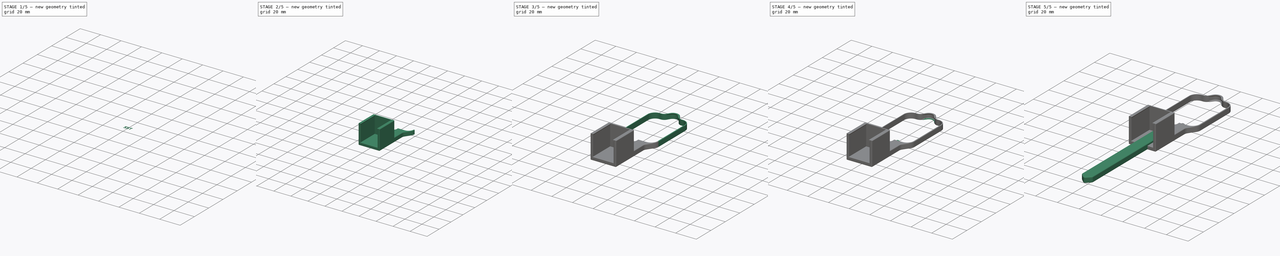
[diagram: build sequence overview — one tinted view per stage of 5, left to right]
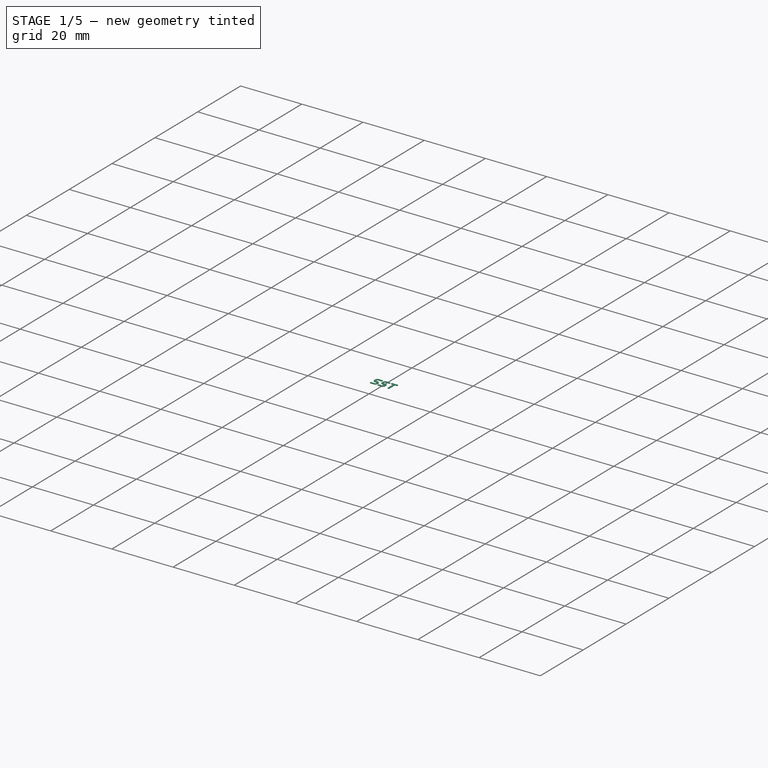
[diagram: stage 1 of 5 — iso view after this stage's code; geometry added in this stage tinted green]
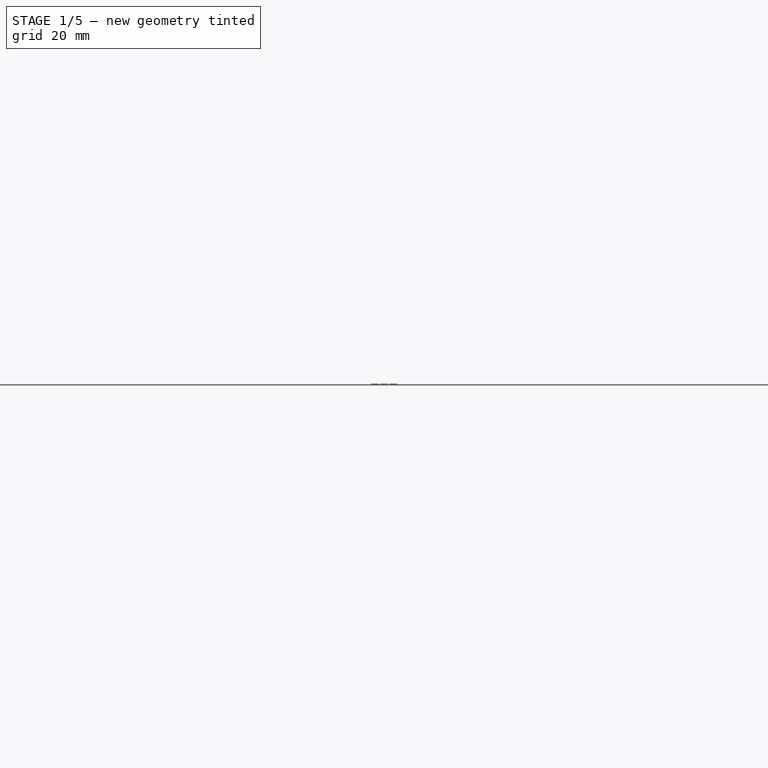
[diagram: stage 1 of 5 — front view after this stage's code; geometry added in this stage tinted green]
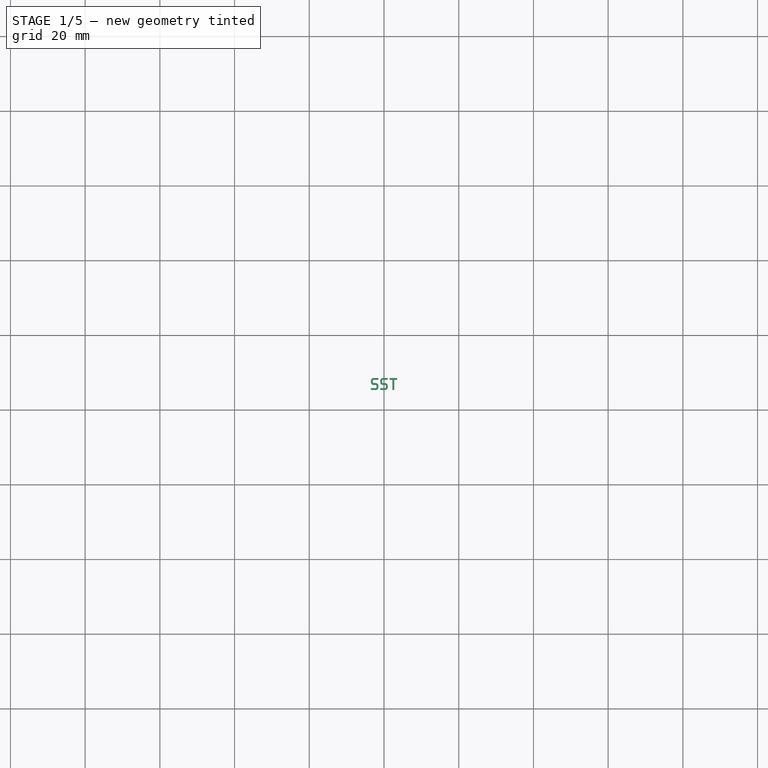
[diagram: stage 1 of 5 — top view after this stage's code; geometry added in this stage tinted green]
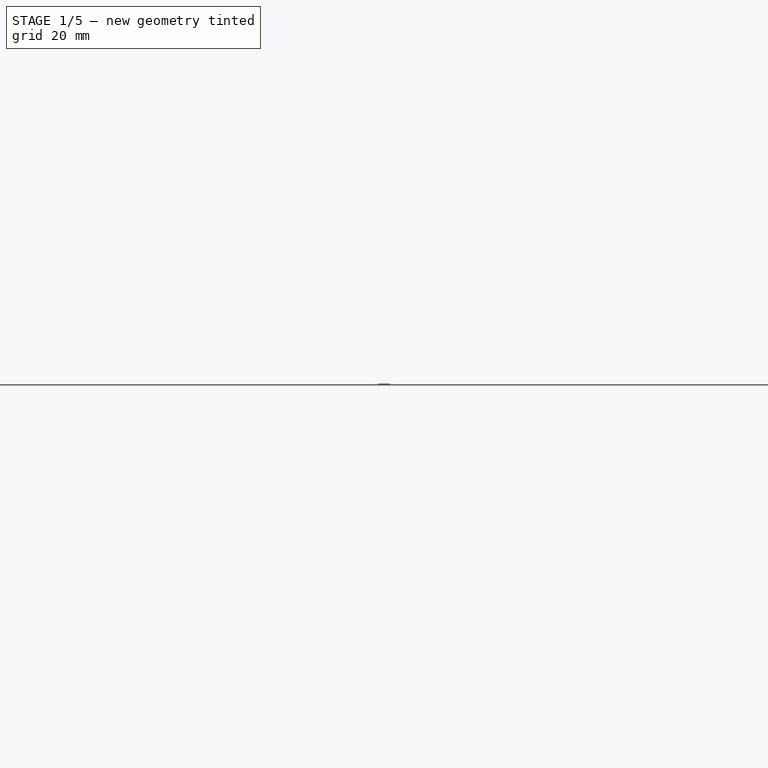
[diagram: stage 1 of 5 — right view after this stage's code; geometry added in this stage tinted green]
FCSTD DOCUMENT  (FreeCAD 0.17R13528 (Git))
Label: PlantSticker
License: All rights reserved
LicenseURL: http://en.wikipedia.org/wiki/All_rights_reserved
objects: Part::Extrusion×11, Sketcher::SketchObject×9, Part::MultiFuse×5, Part::Fillet×4, Part::Chamfer×3, Part::Cut×2, Part::FeaturePython×2
note: 36 computed .brp shape members not serialized (recipe doc carries the construction recipe); baked Part::Feature solids carry a one-line shape summary decoded from their .brp

FEATURE [Sketcher::SketchObject] Sketch004  label="SketchStringS"
  sketch-geometry (20):
    g0: ArcOfCircle CenterX=-0.3 CenterY=0.9 CenterZ=0 NormalX=0 NormalY=0 NormalZ=1 AngleXU=0 Radius=0.2 StartAngle=1.5708 EndAngle=3.14159
    g1: ArcOfCircle CenterX=-0.3 CenterY=0.45 CenterZ=0 NormalX=0 NormalY=0 NormalZ=1 AngleXU=0 Radius=0.2 StartAngle=3.14159 EndAngle=4.71239
    g2: ArcOfCircle CenterX=-0.3 CenterY=0.45 CenterZ=0 NormalX=0 NormalY=0 NormalZ=1 AngleXU=0 Radius=0.7 StartAngle=3.14159 EndAngle=4.71239
    g3: ArcOfCircle CenterX=-0.3 CenterY=0.9 CenterZ=0 NormalX=0 NormalY=0 NormalZ=1 AngleXU=0 Radius=0.7 StartAngle=1.5708 EndAngle=3.14159
    g4: ArcOfCircle CenterX=0.3 CenterY=-0.45 CenterZ=0 NormalX=0 NormalY=0 NormalZ=1 AngleXU=0 Radius=0.7 StartAngle=0 EndAngle=1.5708
    g5: ArcOfCircle CenterX=0.3 CenterY=-0.45 CenterZ=0 NormalX=0 NormalY=0 NormalZ=1 AngleXU=0 Radius=0.2 StartAngle=0 EndAngle=1.5708
    g6: ArcOfCircle CenterX=0.3 CenterY=-0.9 CenterZ=0 NormalX=0 NormalY=0 NormalZ=1 AngleXU=0 Radius=0.7 StartAngle=4.71239 EndAngle=6.28319
    g7: ArcOfCircle CenterX=0.3 CenterY=-0.9 CenterZ=0 NormalX=0 NormalY=0 NormalZ=1 AngleXU=0 Radius=0.2 StartAngle=4.71239 EndAngle=6.28319
    g8: LineSegment StartX=-0.3 StartY=0.25 StartZ=0 EndX=0.3 EndY=0.25 EndZ=0
    g9: LineSegment StartX=-0.3 StartY=1.1 StartZ=0 EndX=1 EndY=1.1 EndZ=0
    g10: LineSegment StartX=1 StartY=1.1 StartZ=0 EndX=1 EndY=1.6 EndZ=0
    g11: LineSegment StartX=1 StartY=1.6 StartZ=0 EndX=-0.3 EndY=1.6 EndZ=0
    g12: LineSegment StartX=-1 StartY=0.9 StartZ=0 EndX=-1 EndY=0.45 EndZ=0
    g13: LineSegment StartX=-0.5 StartY=0.9 StartZ=0 EndX=-0.5 EndY=0.45 EndZ=0
    g14: LineSegment StartX=-0.3 StartY=-0.25 StartZ=0 EndX=0.3 EndY=-0.25 EndZ=0
    g15: LineSegment StartX=0.5 StartY=-0.45 StartZ=0 EndX=0.5 EndY=-0.9 EndZ=0
    g16: LineSegment StartX=1 StartY=-0.45 StartZ=0 EndX=1 EndY=-0.9 EndZ=0
    g17: LineSegment StartX=0.3 StartY=-1.6 StartZ=0 EndX=-1 EndY=-1.6 EndZ=0
    g18: LineSegment StartX=-1 StartY=-1.6 StartZ=0 EndX=-1 EndY=-1.1 EndZ=0
    g19: LineSegment StartX=-1 StartY=-1.1 StartZ=0 EndX=0.3 EndY=-1.1 EndZ=0
  constraints (62):
    c: Coincident(g8,g1)
    c: Coincident(g8,g4)
    c: Horizontal(g8)
    c: Coincident(g9,g0)
    c: Horizontal(g9)
    c: Coincident(g10,g9)
    c: Coincident(g11,g10)
    c: Coincident(g11,g3)
    c: Horizontal(g11)
    c: Vertical(g10)
    c: DistanceY(g10,g10) = 0.5
    c: Coincident(g12,g3)
    c: Coincident(g12,g2)
    c: Vertical(g12)
    c: Coincident(g13,g0)
    c: Coincident(g13,g1)
    c: Coincident(g14,g2)
    c: Coincident(g14,g5)
    c: Horizontal(g14)
    c: Coincident(g15,g5)
    c: Coincident(g15,g7)
    c: Coincident(g16,g4)
    c: Coincident(g16,g6)
    c: Coincident(g17,g6)
    c: Coincident(g18,g17)
    c: Vertical(g18)
    c: Coincident(g19,g18)
    c: Coincident(g19,g7)
    c: Horizontal(g19)
    c: Horizontal(g0,g0)
    c: Vertical(g0,g0)
    c: Vertical(g13)
    c: Horizontal(g3,g3)
    c: Horizontal(g4,g4)
    c: Vertical(g4,g4)
    c: Vertical(g6,g6)
    c: Horizontal(g6,g6)
    c: Vertical(g16)
    c: Horizontal(g17)
    c: Horizontal(g1,g1)
    c: Vertical(g1,g1)
    c: Vertical(g1,g0)
    c: DistanceY(g6,g10) = 3.2
    c: Vertical(g9,g4)
    c: Vertical(g18,g2)
    c: Vertical(g3,g3)
    c: Coincident(g3,g0)
    c: Horizontal(g2,g2)
    c: Vertical(g2,g2)
    c: Coincident(g2,g1)
    c: Vertical(g5,g5)
    c: Vertical(g7,g7)
    c: Vertical(g7,g5)
    c: Vertical(g15)
    c: Horizontal(g5,g5)
    c: Horizontal(g7,g7)
    c: Coincident(g5,g4)
    c: Coincident(g6,g7)
    c: Radius(g5) = 0.2
    c: Symmetric(g2,g4,g-1)
    c: Symmetric(g17,g10,g-1)
    c: DistanceX(g17,g6) = 2
FEATURE [Sketcher::SketchObject] Sketch005  label="SketchStringT"
  sketch-geometry (9):
    g0: LineSegment StartX=-1 StartY=1.6 StartZ=0 EndX=1 EndY=1.6 EndZ=0
    g1: LineSegment StartX=1 StartY=1.6 StartZ=0 EndX=1 EndY=1.1 EndZ=0
    g2: LineSegment StartX=1 StartY=1.1 StartZ=0 EndX=0.25 EndY=1.1 EndZ=0
    g3: LineSegment StartX=0.25 StartY=1.1 StartZ=0 EndX=0.25 EndY=-1.6 EndZ=0
    g4: LineSegment StartX=0.25 StartY=-1.6 StartZ=0 EndX=-0.25 EndY=-1.6 EndZ=0
    g5: LineSegment StartX=-0.25 StartY=-1.6 StartZ=0 EndX=-0.25 EndY=1.1 EndZ=0
    g6: LineSegment StartX=-0.25 StartY=1.1 StartZ=0 EndX=-1 EndY=1.1 EndZ=0
    g7: LineSegment StartX=-1 StartY=1.1 StartZ=0 EndX=-1 EndY=1.6 EndZ=0
    g8: GeomPoint X=1 Y=-1.6 Z=0
  constraints (23):
    c: Coincident(g1,g0)
    c: Vertical(g1)
    c: Coincident(g2,g1)
    c: Horizontal(g2)
    c: Coincident(g3,g2)
    c: Vertical(g3)
    c: Coincident(g4,g3)
    c: Coincident(g5,g4)
    c: Vertical(g5)
    c: Coincident(g6,g5)
    c: Horizontal(g6)
    c: Coincident(g7,g6)
    c: Coincident(g7,g0)
    c: Vertical(g7)
    c: Symmetric(g5,g2,g-2)
    c: Horizontal(g4)
    c: DistanceX(g4,g4) = 0.5
    c: DistanceY(g1,g1) = 0.5
    c: Symmetric(g8,g0,g-1)
    c: DistanceY(g3,g0) = 3.2
    c: DistanceX(g0,g0) = 2
    c: Horizontal(g8,g3)
    c: Symmetric(g0,g0,g-2)
FEATURE [Part::Extrusion] Extrude006  label="ExtrudeStringAS"
  Base = -> Sketch004
  Dir = (0,0,1)
  DirMode = 2
  FaceMakerClass = Part::FaceMakerBullseye
  LengthFwd = 0
  LengthRev = 0.2
  Placement = pos=(-2.5,0,0) rot=(0,0,1;0rad)
  Solid = true
  Symmetric = false
FEATURE [Part::Extrusion] Extrude007  label="ExtrudeStringBS"
  Base = -> Sketch004
  Dir = (0,0,1)
  DirMode = 2
  FaceMakerClass = Part::FaceMakerBullseye
  LengthFwd = 0
  LengthRev = 0.2
  Solid = true
  Symmetric = false
FEATURE [Part::Extrusion] Extrude008  label="ExtrudeStringT"
  Base = -> Sketch005
  Dir = (0,0,1)
  DirMode = 2
  FaceMakerClass = Part::FaceMakerBullseye
  LengthFwd = 0
  LengthRev = 0.2
  Placement = pos=(2.5,0,0) rot=(0,0,1;0rad)
  Solid = true
  Symmetric = false
FEATURE [Part::MultiFuse] Fusion001  label="FusionString2"
  Placement = pos=(0,-33,5) rot=(0,0,1;0rad)
  Shapes = -> [Extrude006,Extrude007,Extrude008]
FEATURE [Part::FeaturePython] Clone001  label="FusionHalter20String2"  # Draft clone (typed FeaturePython)
  AttacherType = Attacher::AttachEngine3D
  Fuse = false
  Objects = -> [Fusion001]
  Placement = pos=(0,-33,5) rot=(0,0,1;0rad)
  Scale = (1,1,1)
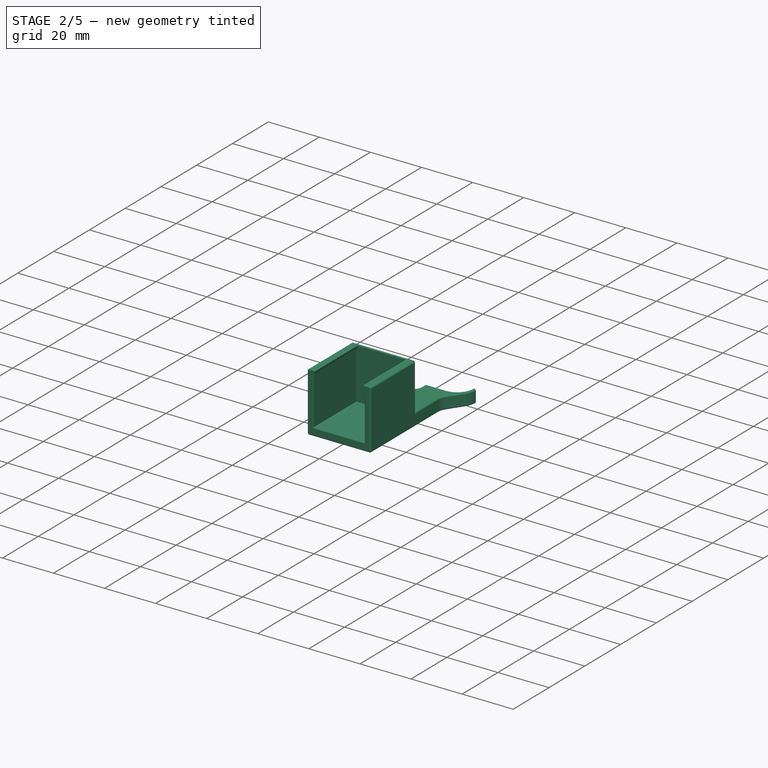
[diagram: stage 2 of 5 — iso view after this stage's code; geometry added in this stage tinted green]
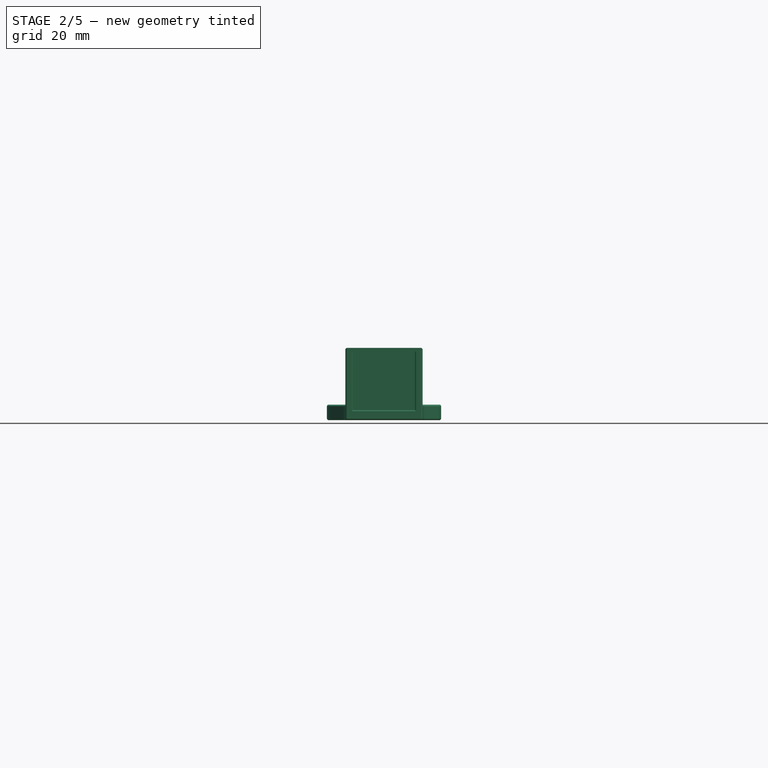
[diagram: stage 2 of 5 — front view after this stage's code; geometry added in this stage tinted green]
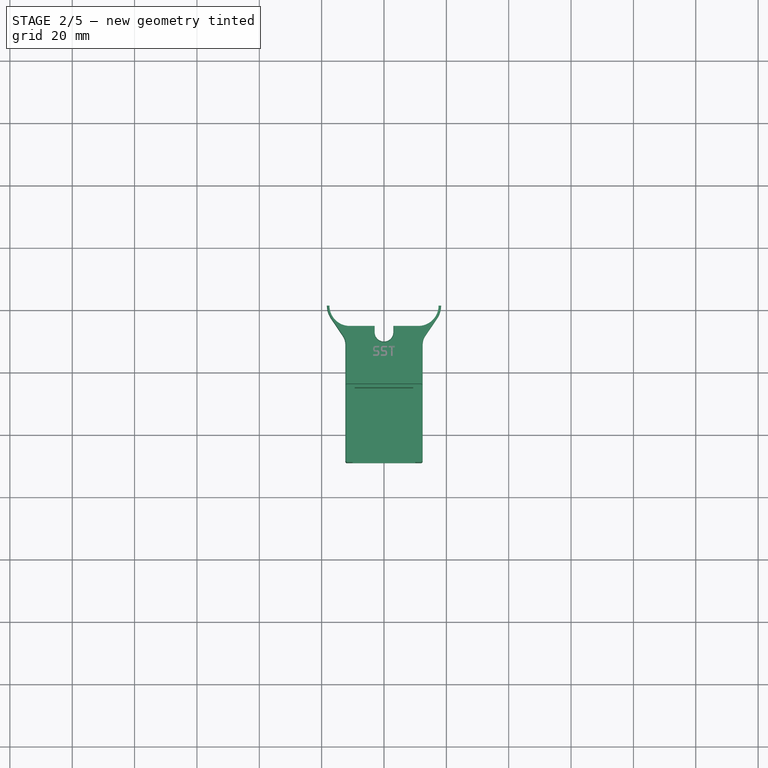
[diagram: stage 2 of 5 — top view after this stage's code; geometry added in this stage tinted green]
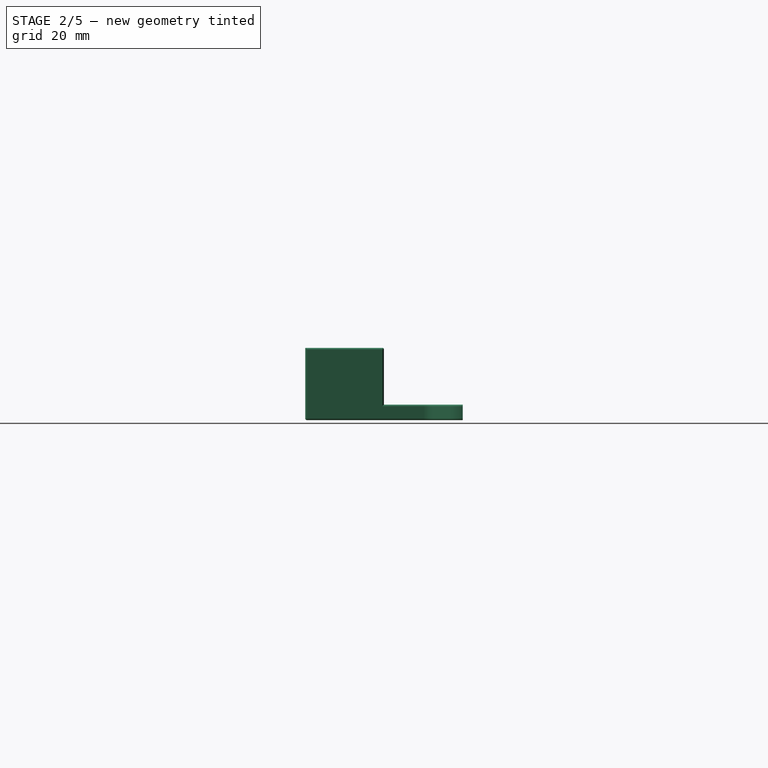
[diagram: stage 2 of 5 — right view after this stage's code; geometry added in this stage tinted green]
FEATURE [Sketcher::SketchObject] Sketch006  label="SketchHalter20A2"
  sketch-geometry (19):
    g0: ArcOfCircle CenterX=11 CenterY=-18.5 CenterZ=0 NormalX=0 NormalY=0 NormalZ=1 AngleXU=0 Radius=6.5 StartAngle=4.71239 EndAngle=6.28319
    g1: ArcOfCircle CenterX=-11 CenterY=-18.5 CenterZ=0 NormalX=0 NormalY=0 NormalZ=1 AngleXU=0 Radius=6.5 StartAngle=3.14159 EndAngle=4.71239
    g2: ArcOfCircle CenterX=-11 CenterY=-18.5 CenterZ=0 NormalX=0 NormalY=0 NormalZ=1 AngleXU=0 Radius=7.31 StartAngle=3.14159 EndAngle=3.73711
    g3: ArcOfCircle CenterX=11 CenterY=-18.5 CenterZ=0 NormalX=0 NormalY=0 NormalZ=1 AngleXU=0 Radius=7.31 StartAngle=5.68767 EndAngle=6.28319
    g4: GeomPoint X=11 Y=25 Z=0
    g5: LineSegment StartX=17.5 StartY=-18.5 StartZ=0 EndX=18.31 EndY=-18.5 EndZ=0
    g6: LineSegment StartX=-18.31 StartY=-18.5 StartZ=0 EndX=-17.5 EndY=-18.5 EndZ=0
    g7: LineSegment StartX=-17.0516 StartY=-22.6004 StartZ=0 EndX=-13.2607 EndY=-28.1953 EndZ=0
    g8: LineSegment StartX=17.0516 StartY=-22.6004 StartZ=0 EndX=13.2607 EndY=-28.1953 EndZ=0
    g9: LineSegment StartX=-12.4 StartY=-31 StartZ=0 EndX=-12.4 EndY=-45 EndZ=0
    g10: ArcOfCircle CenterX=-17.4 CenterY=-31 CenterZ=0 NormalX=0 NormalY=0 NormalZ=1 AngleXU=0 Radius=5 StartAngle=0 EndAngle=0.595516
    g11: ArcOfCircle CenterX=17.4 CenterY=-31 CenterZ=0 NormalX=0 NormalY=0 NormalZ=1 AngleXU=0 Radius=5 StartAngle=2.54608 EndAngle=3.14159
    g12: LineSegment StartX=-11 StartY=-25 StartZ=0 EndX=-3 EndY=-25 EndZ=0
    g13: LineSegment StartX=11 StartY=-25 StartZ=0 EndX=3 EndY=-25 EndZ=0
    g14: LineSegment StartX=3 StartY=-25 StartZ=0 EndX=3 EndY=-27 EndZ=0
    g15: LineSegment StartX=-3 StartY=-25 StartZ=0 EndX=-3 EndY=-27 EndZ=0
    g16: ArcOfCircle CenterX=0 CenterY=-27 CenterZ=0 NormalX=0 NormalY=0 NormalZ=1 AngleXU=0 Radius=3 StartAngle=3.14159 EndAngle=6.28319
    g17: LineSegment StartX=12.4 StartY=-31 StartZ=0 EndX=12.4 EndY=-45 EndZ=0
    g18: LineSegment StartX=-12.4 StartY=-45 StartZ=0 EndX=12.4 EndY=-45 EndZ=0
  constraints (55):
    c: Symmetric(g1,g0,g-2)
    c: Vertical(g0,g0)
    c: Horizontal(g0,g0)
    c: Vertical(g1,g1)
    c: Horizontal(g1,g1)
    c: Radius(g0) = 6.5
    c: DistanceX(g1,g0) = 35
    c: Horizontal(g1,g0)
    c: Coincident(g2,g1)
    c: Coincident(g3,g0)
    c: Horizontal(g0,g3)
    c: DistanceX(g0,g3) = 0.81
    c: Horizontal(g2,g1)
    c: Symmetric(g4,g0,g-1)
    c: DistanceY(g0,g4) = 50
    c: Coincident(g5,g0)
    c: Coincident(g5,g3)
    c: Coincident(g6,g2)
    c: Coincident(g6,g1)
    c: Vertical(g9)
    c: Tangent(g8,g3) = 1.5708
    c: Tangent(g7,g2) = -1.5708
    c: Coincident(g10,g9)
    c: Horizontal(g9,g10)
    c: Horizontal(g11,g11)
    c: Tangent(g10,g7) = 1.5708
    c: Tangent(g11,g8) = -1.5708
    c: Symmetric(g9,g11,g-2)
    c: DistanceX(g9,g11) = 24.8
    c: Radius(g11) = 5
    c: Horizontal(g7,g8)
    c: Equal(g6,g5)
    c: Angle(g11,g8) = 2.26893
    c: Coincident(g12,g1)
    c: Horizontal(g12)
    c: Coincident(g13,g0)
    c: Horizontal(g13)
    c: Coincident(g14,g13)
    c: Vertical(g14)
    c: Coincident(g15,g12)
    c: Vertical(g15)
    c: Coincident(g16,g15)
    c: Coincident(g16,g14)
    c: Horizontal(g15,g14)
    c: Horizontal(g14,g16)
    c: PointOnObject(g16,g-2)
    c: Radius(g16) = 3
    c: DistanceY(g14,g14) = 2
    c: Coincident(g17,g11)
    c: Vertical(g17)
    c: DistanceY(g17,g-1) = 45
    c: DistanceY(g11,g0) = 6
    c: Coincident(g18,g9)
    c: Coincident(g18,g17)
    c: Horizontal(g18)
FEATURE [Part::Extrusion] Extrude009  label="ExtrudeHalter20A2"
  Base = -> Sketch006
  Dir = (0,0,1)
  DirMode = 2
  FaceMakerClass = Part::FaceMakerBullseye
  LengthFwd = 5
  LengthRev = 0
  Solid = true
  Symmetric = false
FEATURE [Sketcher::SketchObject] Sketch007  label="SketchHalter20B2"
  Placement = pos=(0,0,0) rot=(-1,0,0;4.71239rad)
  sketch-geometry (12):
    g0: LineSegment StartX=-12.4 StartY=23.2 StartZ=0 EndX=-12.4 EndY=0 EndZ=0
    g1: LineSegment StartX=-12.4 StartY=0 StartZ=0 EndX=12.4 EndY=0 EndZ=0
    g2: LineSegment StartX=12.4 StartY=0 StartZ=0 EndX=12.4 EndY=23.2 EndZ=0
    g3: LineSegment StartX=12.4 StartY=23.2 StartZ=0 EndX=9.4 EndY=23.2 EndZ=0
    g4: LineSegment StartX=9.4 StartY=23.2 StartZ=0 EndX=9.4 EndY=22.8 EndZ=0
    g5: LineSegment StartX=9.4 StartY=22.8 StartZ=0 EndX=10 EndY=22.0849 EndZ=0
    g6: LineSegment StartX=10 StartY=22.0849 StartZ=0 EndX=10 EndY=3.2 EndZ=0
    g7: LineSegment StartX=10 StartY=3.2 StartZ=0 EndX=-10 EndY=3.2 EndZ=0
    g8: LineSegment StartX=-10 StartY=3.2 StartZ=0 EndX=-10 EndY=22.0849 EndZ=0
    g9: LineSegment StartX=-10 StartY=22.0849 StartZ=0 EndX=-9.4 EndY=22.8 EndZ=0
    g10: LineSegment StartX=-9.4 StartY=22.8 StartZ=0 EndX=-9.4 EndY=23.2 EndZ=0
    g11: LineSegment StartX=-9.4 StartY=23.2 StartZ=0 EndX=-12.4 EndY=23.2 EndZ=0
  constraints (33):
    c: Vertical(g0)
    c: Coincident(g1,g0)
    c: Coincident(g2,g1)
    c: Vertical(g2)
    c: Coincident(g3,g2)
    c: Horizontal(g3)
    c: Coincident(g4,g3)
    c: Coincident(g5,g4)
    c: Coincident(g6,g5)
    c: Vertical(g6)
    c: Coincident(g7,g6)
    c: Horizontal(g7)
    c: Coincident(g8,g7)
    c: Vertical(g8)
    c: Coincident(g9,g8)
    c: Coincident(g10,g9)
    c: Vertical(g10)
    c: Coincident(g11,g10)
    c: Coincident(g11,g0)
    c: Horizontal(g11)
    c: Symmetric(g10,g3,g-2)
    c: Vertical(g4)
    c: Horizontal(g9,g4)
    c: Symmetric(g8,g5,g-2)
    c: PointOnObject(g1,g-1)
    c: DistanceY(g1,g6) = 3.2
    c: DistanceY(g6,g2) = 20
    c: DistanceX(g7,g6) = 20
    c: Symmetric(g0,g1,g-2)
    c: DistanceX(g6,g1) = 2.4
    c: DistanceY(g4,g4) = 0.4
    c: DistanceX(g4,g5) = 0.6
    c: Angle(g5,g6) = 2.44346
FEATURE [Part::Extrusion] Extrude010  label="ExtrudeHalter20B2"
  Base = -> Sketch007
  Dir = (0,-1,0)
  DirMode = 2
  FaceMakerClass = Part::FaceMakerBullseye
  LengthFwd = 24
  LengthRev = 0
  Placement = pos=(0,-45,0) rot=(0,0,1;0rad)
  Solid = true
  Symmetric = false
FEATURE [Sketcher::SketchObject] Sketch008  label="SketchHalter20C2"
  Placement = pos=(0,0,0) rot=(1,0,0;1.5708rad)
  sketch-geometry (4):
    g0: LineSegment StartX=-12.4 StartY=23.2 StartZ=0 EndX=-12.4 EndY=0 EndZ=0
    g1: LineSegment StartX=-12.4 StartY=0 StartZ=0 EndX=12.4 EndY=0 EndZ=0
    g2: LineSegment StartX=12.4 StartY=0 StartZ=0 EndX=12.4 EndY=23.2 EndZ=0
    g3: LineSegment StartX=12.4 StartY=23.2 StartZ=0 EndX=-12.4 EndY=23.2 EndZ=0
  constraints (11):
    c: Vertical(g0)
    c: Coincident(g1,g0)
    c: Coincident(g2,g1)
    c: Vertical(g2)
    c: Coincident(g3,g2)
    c: Horizontal(g3)
    c: PointOnObject(g1,g-1)
    c: Symmetric(g0,g1,g-2)
    c: DistanceY(g1,g2) = 23.2
    c: DistanceX(g0,g2) = 24.8
    c: Coincident(g3,g0)
FEATURE [Part::Extrusion] Extrude011  label="ExtrudeHalter20C2"
  Base = -> Sketch008
  Dir = (0,-1,0)
  DirMode = 2
  FaceMakerClass = Part::FaceMakerBullseye
  LengthFwd = 0
  LengthRev = 1.2
  Placement = pos=(0,-45,0) rot=(0,0,1;0rad)
  Solid = true
  Symmetric = false
FEATURE [Part::MultiFuse] Fusion003  label="FusionHalter20"
  Refine = true
  Shapes = -> [Extrude009,Extrude010,Extrude011]
FEATURE [Part::Fillet] Fillet002  label="FilletHalter20A2"
  Base = -> Fusion003
  Edges = 23 edges r=0.6: [Edge11,Edge12,Edge13,Edge14,Edge16,Edge17,Edge18,Edge19,Edge29,Edge31,Edge33,Edge36,Edge38,Edge40,Edge50,Edge51,Edge53,Edge54,Edge55,Edge56,Edge57,Edge82,Edge83]
FEATURE [Part::Fillet] Fillet003  label="FilletHalter20B2"
  Base = -> Fillet002
  Edges = 10 edges r=0.39: [Edge18,Edge20,Edge22,Edge34,Edge36,Edge38,Edge82,Edge104,Edge106,Edge108]
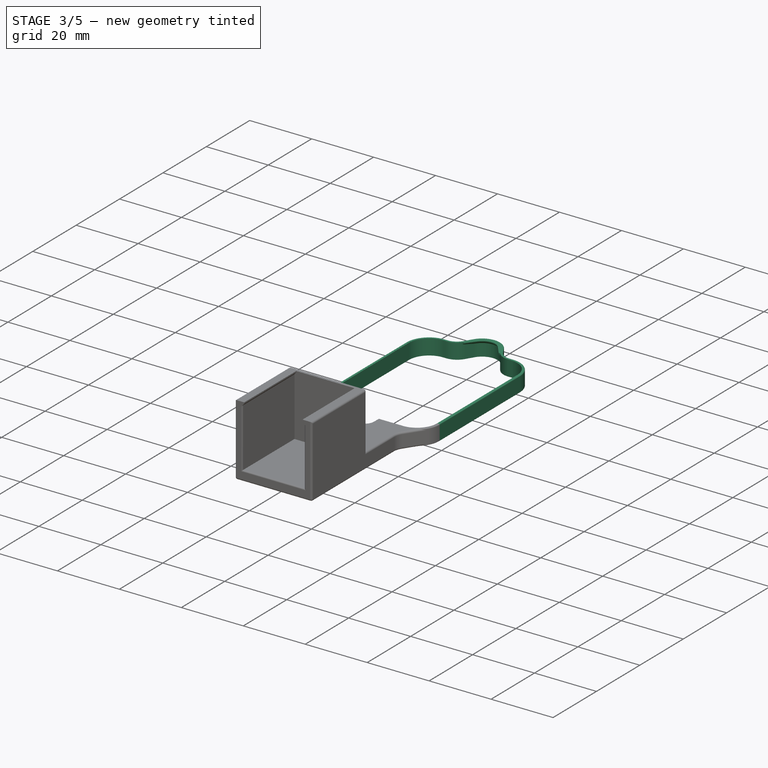
[diagram: stage 3 of 5 — iso view after this stage's code; geometry added in this stage tinted green]
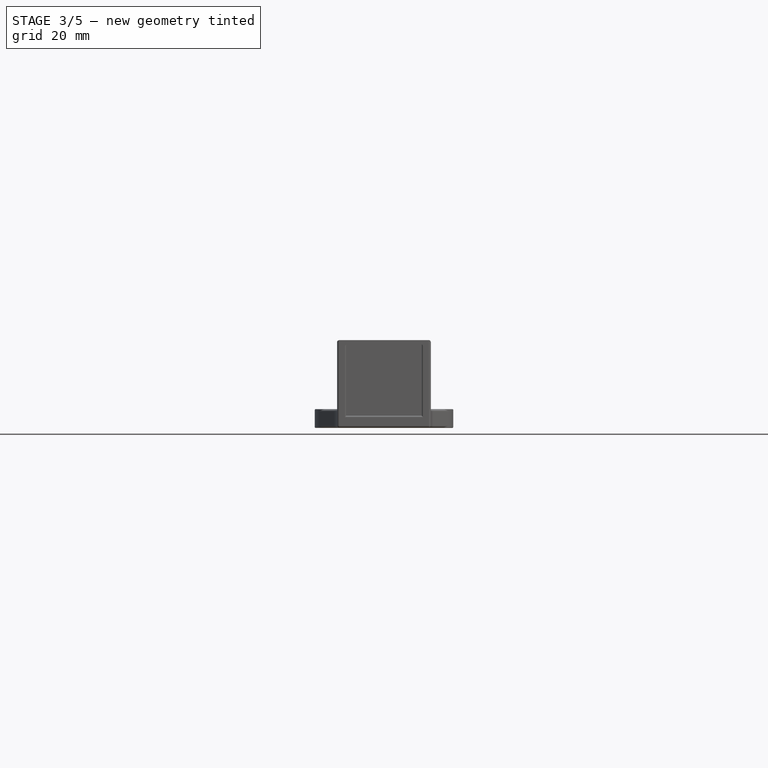
[diagram: stage 3 of 5 — front view after this stage's code; geometry added in this stage tinted green]
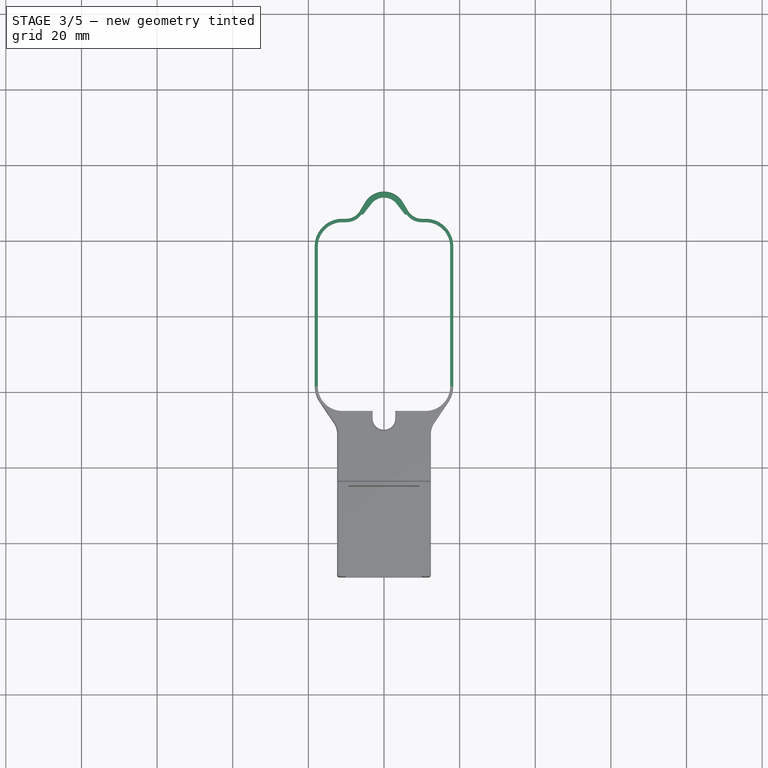
[diagram: stage 3 of 5 — top view after this stage's code; geometry added in this stage tinted green]
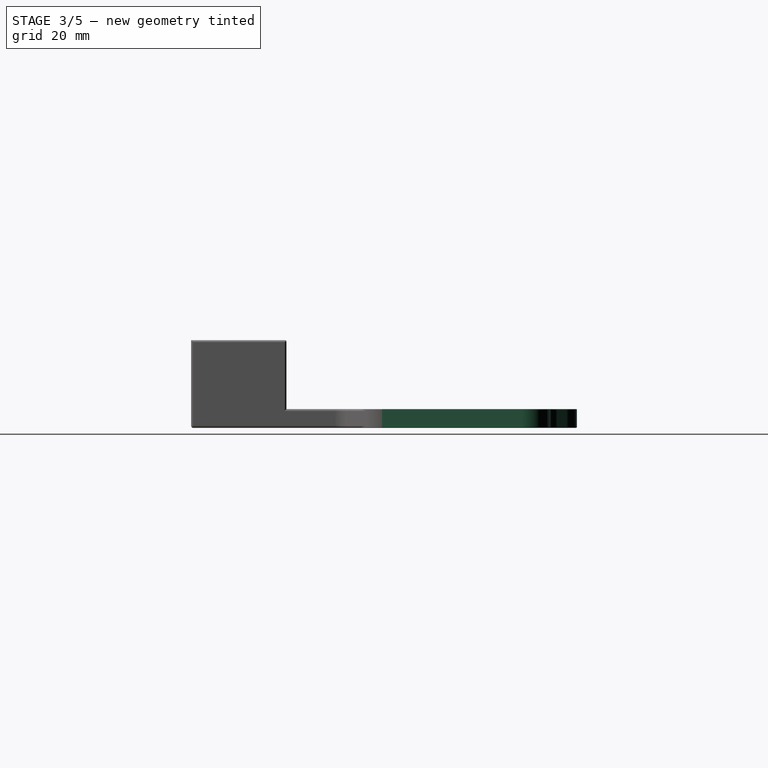
[diagram: stage 3 of 5 — right view after this stage's code; geometry added in this stage tinted green]
FEATURE [Sketcher::SketchObject] Sketch  label="SketchRand2"
  sketch-geometry (33):
    g0: LineSegment StartX=-17.5 StartY=18.5 StartZ=0 EndX=-17.5 EndY=-18.5 EndZ=0
    g1: LineSegment StartX=17.5 StartY=-18.5 StartZ=0 EndX=17.5 EndY=18.5 EndZ=0
    g2: ArcOfCircle CenterX=-11 CenterY=18.5 CenterZ=0 NormalX=0 NormalY=0 NormalZ=1 AngleXU=0 Radius=6.5 StartAngle=1.5708 EndAngle=3.14159
    g3: ArcOfCircle CenterX=11 CenterY=18.5 CenterZ=0 NormalX=0 NormalY=0 NormalZ=1 AngleXU=0 Radius=6.5 StartAngle=0 EndAngle=1.5708
    g4: ArcOfCircle CenterX=11 CenterY=-18.5 CenterZ=0 NormalX=0 NormalY=0 NormalZ=1 AngleXU=0 Radius=6.5 StartAngle=4.71239 EndAngle=6.28319
    g5: ArcOfCircle CenterX=-11 CenterY=-18.5 CenterZ=0 NormalX=0 NormalY=0 NormalZ=1 AngleXU=0 Radius=6.5 StartAngle=3.14159 EndAngle=4.71239
    g6: ArcOfCircle CenterX=-10 CenterY=30 CenterZ=0 NormalX=0 NormalY=0 NormalZ=1 AngleXU=0 Radius=5 StartAngle=4.71239 EndAngle=5.73717
    g7: ArcOfCircle CenterX=10 CenterY=30 CenterZ=0 NormalX=0 NormalY=0 NormalZ=1 AngleXU=0 Radius=5 StartAngle=3.68761 EndAngle=4.71239
    g8: LineSegment StartX=-11 StartY=25 StartZ=0 EndX=-10 EndY=25 EndZ=0
    g9: LineSegment StartX=10 StartY=25 StartZ=0 EndX=11 EndY=25 EndZ=0
    g10: LineSegment StartX=5.727 StartY=27.4036 StartZ=0 EndX=4.273 EndY=29.7964 EndZ=0
    g11: LineSegment StartX=-4.273 StartY=29.7964 StartZ=0 EndX=-5.727 EndY=27.4036 EndZ=0
    g12: ArcOfCircle CenterX=0 CenterY=27.2 CenterZ=0 NormalX=0 NormalY=0 NormalZ=1 AngleXU=0 Radius=5 StartAngle=1.5708 EndAngle=2.59558
    g13: ArcOfCircle CenterX=0 CenterY=27.2 CenterZ=0 NormalX=0 NormalY=0 NormalZ=1 AngleXU=0 Radius=5 StartAngle=0.546017 EndAngle=1.5708
    g14: ArcOfCircle CenterX=-11 CenterY=-18.5 CenterZ=0 NormalX=0 NormalY=0 NormalZ=1 AngleXU=0 Radius=7.31 StartAngle=3.14159 EndAngle=4.71239
    g15: ArcOfCircle CenterX=11 CenterY=-18.5 CenterZ=0 NormalX=0 NormalY=0 NormalZ=1 AngleXU=0 Radius=7.31 StartAngle=4.71239 EndAngle=6.28319
    g16: ArcOfCircle CenterX=11 CenterY=18.5 CenterZ=0 NormalX=0 NormalY=0 NormalZ=1 AngleXU=0 Radius=7.31 StartAngle=0 EndAngle=1.5708
    g17: ArcOfCircle CenterX=10 CenterY=30 CenterZ=0 NormalX=0 NormalY=0 NormalZ=1 AngleXU=0 Radius=4.19 StartAngle=3.68761 EndAngle=4.71239
    g18: ArcOfCircle CenterX=0 CenterY=27.2 CenterZ=0 NormalX=0 NormalY=0 NormalZ=1 AngleXU=0 Radius=5.81 StartAngle=0.546017 EndAngle=2.59558
    g19: ArcOfCircle CenterX=-10 CenterY=30 CenterZ=0 NormalX=0 NormalY=0 NormalZ=1 AngleXU=0 Radius=4.19 StartAngle=4.71239 EndAngle=5.73717
    g20: ArcOfCircle CenterX=-11 CenterY=18.5 CenterZ=0 NormalX=0 NormalY=0 NormalZ=1 AngleXU=0 Radius=7.31 StartAngle=1.5708 EndAngle=3.14159
    g21: LineSegment StartX=-6.41923 StartY=27.8242 StartZ=0 EndX=-4.96522 EndY=30.2171 EndZ=0
    g22: LineSegment StartX=4.96522 StartY=30.2171 StartZ=0 EndX=6.41923 EndY=27.8242 EndZ=0
    g23: LineSegment StartX=10 StartY=25.81 StartZ=0 EndX=11 EndY=25.81 EndZ=0
    g24: LineSegment StartX=-11 StartY=25.81 StartZ=0 EndX=-10 EndY=25.81 EndZ=0
    g25: LineSegment StartX=-18.31 StartY=18.5 StartZ=0 EndX=-18.31 EndY=-18.5 EndZ=0
    g26: LineSegment StartX=18.31 StartY=-18.5 StartZ=0 EndX=18.31 EndY=18.5 EndZ=0
    g27: LineSegment StartX=-11 StartY=-25 StartZ=0 EndX=-3.5 EndY=-25 EndZ=0
    g28: LineSegment StartX=-3.5 StartY=-25 StartZ=0 EndX=-3.5 EndY=-25.81 EndZ=0
    g29: LineSegment StartX=-3.5 StartY=-25.81 StartZ=0 EndX=-11 EndY=-25.81 EndZ=0
    g30: LineSegment StartX=11 StartY=-25 StartZ=0 EndX=3.5 EndY=-25 EndZ=0
    g31: LineSegment StartX=3.5 StartY=-25 StartZ=0 EndX=3.5 EndY=-25.81 EndZ=0
    g32: LineSegment StartX=3.5 StartY=-25.81 StartZ=0 EndX=11 EndY=-25.81 EndZ=0
  constraints (95):
    c: Vertical(g0)
    c: Symmetric(g1,g1,g-1)
    c: Symmetric(g5,g4,g-2)
    c: Coincident(g2,g0)
    c: Coincident(g3,g1)
    c: Coincident(g4,g1)
    c: Coincident(g5,g0)
    c: Horizontal(g0,g2)
    c: Horizontal(g3,g1)
    c: Horizontal(g2,g3)
    c: Vertical(g4,g4)
    c: Horizontal(g4,g1)
    c: Vertical(g5,g5)
    c: Horizontal(g5,g0)
    c: Radius(g4) = 6.5
    c: DistanceX(g0,g1) = 35
    c: Vertical(g2,g2)
    c: Vertical(g3,g3)
    c: Vertical(g4,g3)
    c: Horizontal(g5,g4)
    c: Vertical(g5,g2)
    c: DistanceY(g4,g3) = 50
    c: Coincident(g8,g2)
    c: Coincident(g8,g6)
    c: Coincident(g9,g7)
    c: Horizontal(g9)
    c: Horizontal(g3,g9)
    c: DistanceX(g9,g9) = 1
    c: Coincident(g9,g3)
    c: Vertical(g7,g7)
    c: Vertical(g6,g6)
    c: Symmetric(g6,g7,g-2)
    c: Tangent(g11,g6) = 1.5708
    c: Tangent(g10,g7) = 1.5708
    c: Radius(g7) = 5
    c: Horizontal(g6,g7)
    c: Coincident(g13,g12)
    c: Coincident(g13,g12)
    c: PointOnObject(g12,g-2)
    c: PointOnObject(g12,g-2)
    c: Tangent(g12,g11) = -1.5708
    c: Tangent(g13,g10) = -1.5708
    c: Radius(g13) = 5
    c: DistanceY(g4,g12) = 57.2
    c: Coincident(g14,g5)
    c: Coincident(g15,g4)
    c: Coincident(g16,g3)
    c: Coincident(g17,g7)
    c: Coincident(g18,g12)
    c: Coincident(g19,g6)
    c: Coincident(g20,g2)
    c: Coincident(g23,g17)
    c: Coincident(g23,g16)
    c: Horizontal(g23)
    c: Coincident(g24,g20)
    c: Coincident(g24,g19)
    c: Coincident(g25,g20)
    c: Coincident(g25,g14)
    c: Vertical(g25)
    c: Coincident(g26,g15)
    c: Coincident(g26,g16)
    c: Vertical(g26)
    c: Horizontal(g4,g15)
    c: DistanceX(g1,g15) = 0.81
    c: Vertical(g4,g15)
    c: Vertical(g14,g5)
    c: Horizontal(g14,g5)
    c: Horizontal(g20,g2)
    c: Horizontal(g3,g16)
    c: Vertical(g2,g20)
    c: Horizontal(g24)
    c: Vertical(g19,g6)
    c: Vertical(g17,g7)
    c: Vertical(g3,g16)
    c: Tangent(g22,g17) = -1.5708
    c: Tangent(g21,g19) = -1.5708
    c: Tangent(g21,g18) = 1.5708
    c: Tangent(g22,g18) = 1.5708
    c: Parallel(g10,g22)
    c: Coincident(g27,g5)
    c: Horizontal(g27)
    c: Coincident(g28,g27)
    c: Coincident(g29,g28)
    c: Coincident(g29,g14)
    c: Horizontal(g29)
    c: Coincident(g30,g4)
    c: Horizontal(g30)
    c: Coincident(g31,g30)
    c: Coincident(g32,g31)
    c: Coincident(g32,g15)
    c: Horizontal(g32)
    c: Symmetric(g28,g31,g-2)
    c: Vertical(g28)
    c: Vertical(g31)
    c: DistanceX(g27,g30) = 7
FEATURE [Part::Extrusion] Extrude  label="ExtrudeRand2"
  Base = -> Sketch
  Dir = (0,0,1)
  DirMode = 2
  FaceMakerClass = Part::FaceMakerBullseye
  LengthFwd = 5
  LengthRev = 0
  Solid = true
  Symmetric = false
FEATURE [Part::Extrusion] Extrude003  label="ExtrudeRandCB2"
  Base = -> Sketch002
  Dir = (0,0,1)
  DirMode = 2
  FaceMakerClass = Part::FaceMakerBullseye
  LengthFwd = 0
  LengthRev = 1
  Placement = pos=(0,0,5) rot=(0,0,1;0rad)
  Solid = true
  Symmetric = false
FEATURE [Part::Chamfer] Chamfer002  label="ChamferRandCB2"
  Base = -> Extrude003
  Edges = 3 edges r=0.75: [Edge18,Edge21,Edge24]
FEATURE [Part::Fillet] Fillet001  label="FilletRand2"
  Base = -> Extrude
  Edges = 30 edges r=0.24: [Edge18,Edge19,Edge21,Edge22,Edge24,Edge25,Edge27,Edge28,Edge30,Edge31,Edge33,Edge34,Edge36,Edge37,Edge39,Edge40,Edge42,Edge43,Edge45,Edge46,Edge48,Edge49,Edge51,Edge52,Edge54,Edge55,Edge57,Edge58,Edge60,Edge61]
FEATURE [Part::Cut] Cut001  label="CutHalter20-2"
  Base = -> Fillet003
  Tool = -> Clone001
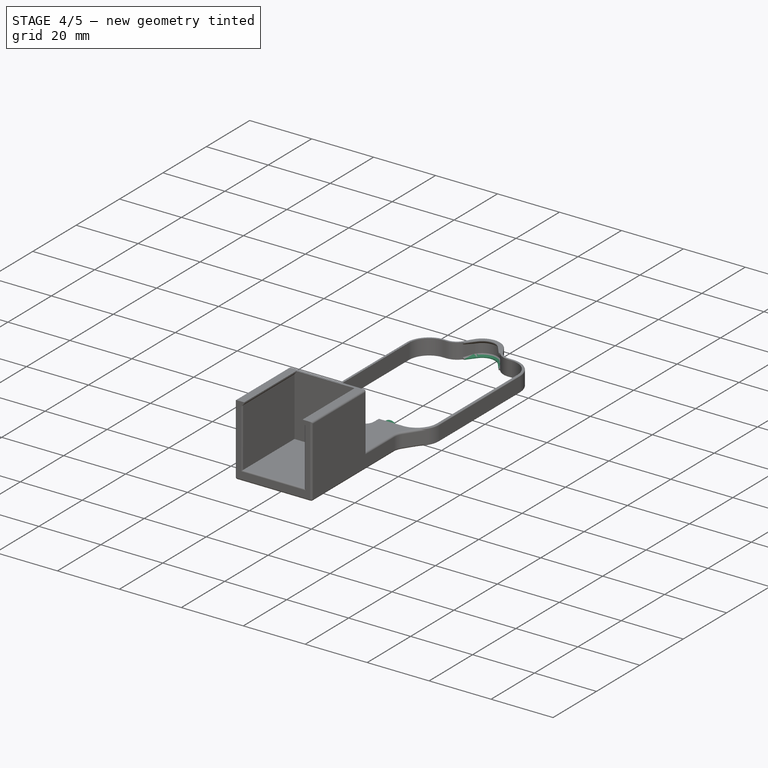
[diagram: stage 4 of 5 — iso view after this stage's code; geometry added in this stage tinted green]
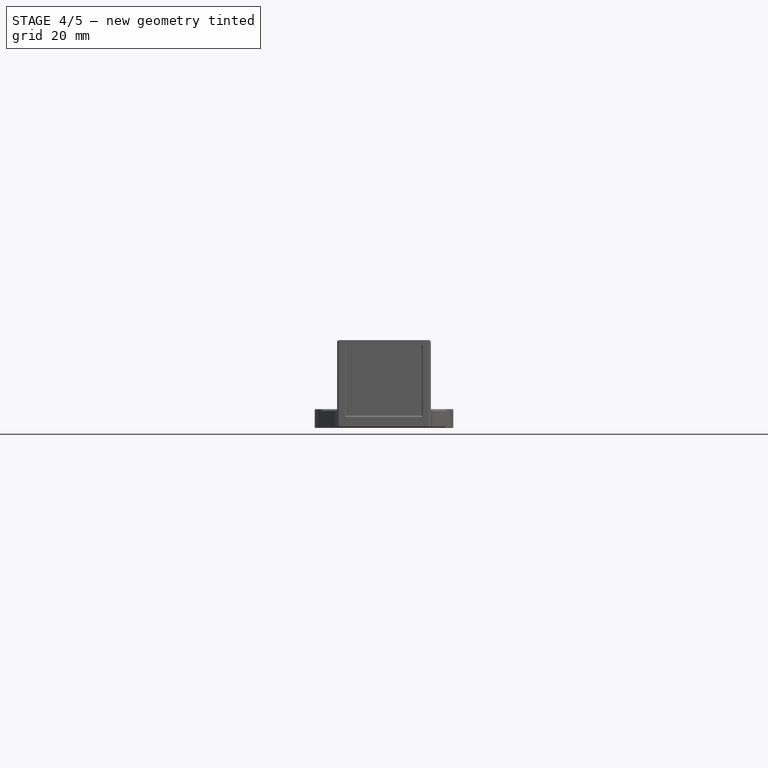
[diagram: stage 4 of 5 — front view after this stage's code; geometry added in this stage tinted green]
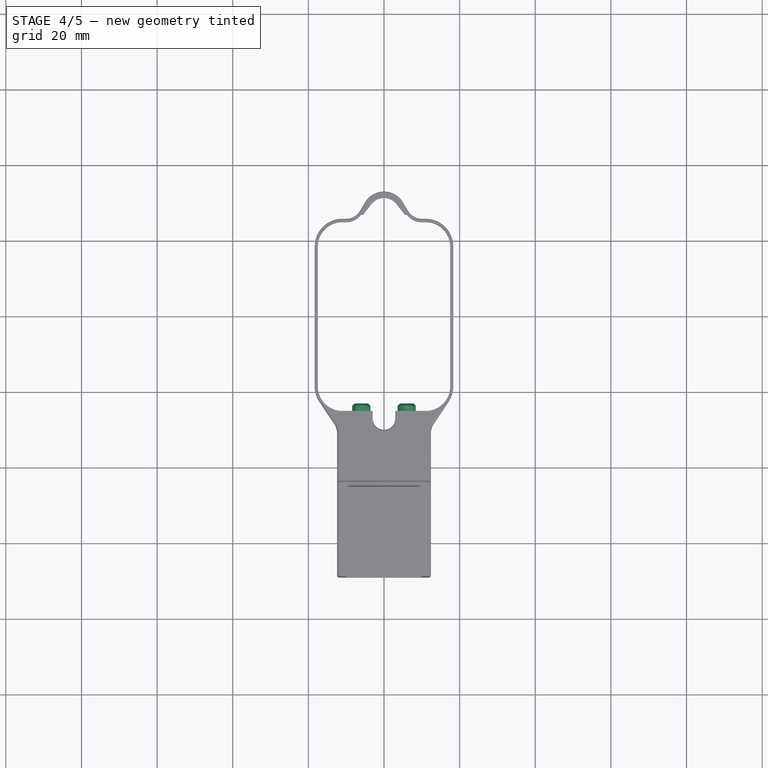
[diagram: stage 4 of 5 — top view after this stage's code; geometry added in this stage tinted green]
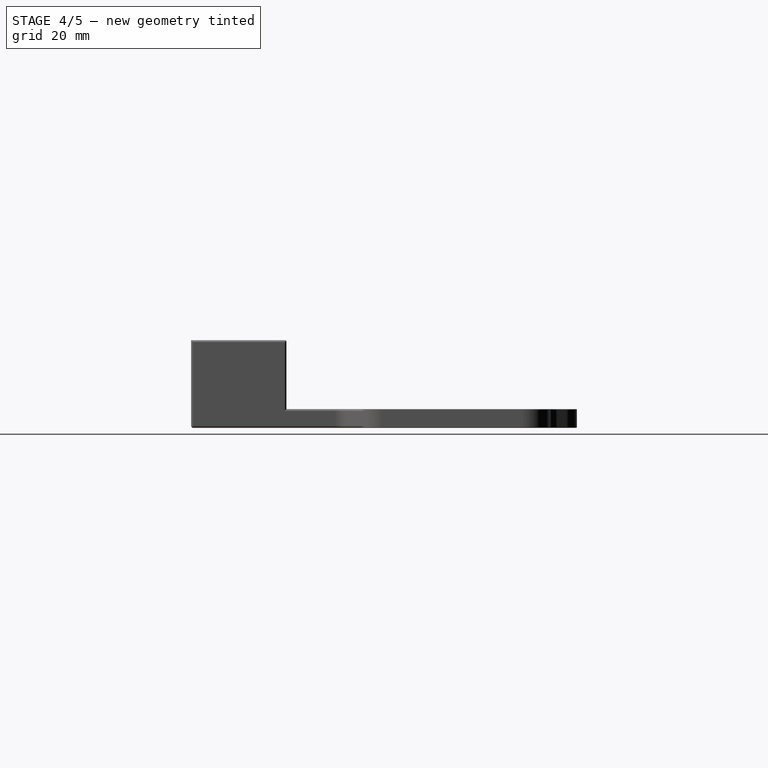
[diagram: stage 4 of 5 — right view after this stage's code; geometry added in this stage tinted green]
FEATURE [Sketcher::SketchObject] Sketch001  label="SketchClip2"
  Placement = pos=(0,0,0) rot=(1,0,0;1.5708rad)
  sketch-geometry (12):
    g0: LineSegment StartX=-6.205 StartY=0 StartZ=0 EndX=-6 EndY=0 EndZ=0
    g1: LineSegment StartX=-6 StartY=0 StartZ=0 EndX=-5.795 EndY=0 EndZ=0
    g2: LineSegment StartX=-5.795 StartY=0 StartZ=0 EndX=-3.6 EndY=2.4 EndZ=0
    g3: LineSegment StartX=-6.205 StartY=0 StartZ=0 EndX=-8.4 EndY=2.4 EndZ=0
    g4: ArcOfCircle CenterX=-6 CenterY=2.4 CenterZ=0 NormalX=0 NormalY=0 NormalZ=1 AngleXU=0 Radius=2.4 StartAngle=1.5708 EndAngle=3.14159
    g5: ArcOfCircle CenterX=-6 CenterY=2.4 CenterZ=0 NormalX=0 NormalY=0 NormalZ=1 AngleXU=0 Radius=2.4 StartAngle=0 EndAngle=1.5708
    g6: LineSegment StartX=5.795 StartY=0 StartZ=0 EndX=6 EndY=0 EndZ=0
    g7: LineSegment StartX=6 StartY=0 StartZ=0 EndX=6.205 EndY=0 EndZ=0
    g8: LineSegment StartX=6.205 StartY=0 StartZ=0 EndX=8.4 EndY=2.4 EndZ=0
    g9: LineSegment StartX=5.795 StartY=0 StartZ=0 EndX=3.6 EndY=2.4 EndZ=0
    g10: ArcOfCircle CenterX=6 CenterY=2.4 CenterZ=0 NormalX=0 NormalY=0 NormalZ=1 AngleXU=0 Radius=2.4 StartAngle=1.5708 EndAngle=3.14159
    g11: ArcOfCircle CenterX=6 CenterY=2.4 CenterZ=0 NormalX=0 NormalY=0 NormalZ=1 AngleXU=0 Radius=2.4 StartAngle=0 EndAngle=1.5708
  constraints (36):
    c: Horizontal(g0)
    c: Coincident(g1,g0)
    c: Horizontal(g1)
    c: Coincident(g2,g1)
    c: Coincident(g3,g0)
    c: Equal(g0,g1)
    c: Coincident(g4,g3)
    c: Coincident(g5,g4)
    c: Coincident(g5,g2)
    c: Coincident(g5,g4)
    c: Vertical(g4,g4)
    c: DistanceY(g1,g4) = 4.8
    c: Horizontal(g2,g3)
    c: Horizontal(g4,g2)
    c: DistanceX(g3,g2) = 4.8
    c: Vertical(g0,g4)
    c: DistanceX(g0,g1) = 0.41
    c: PointOnObject(g0,g-1)
    c: Horizontal(g6)
    c: Coincident(g7,g6)
    c: Horizontal(g7)
    c: Coincident(g8,g7)
    c: Coincident(g9,g6)
    c: Coincident(g10,g9)
    c: Coincident(g11,g10)
    c: Coincident(g11,g8)
    c: Horizontal(g9,g10)
    c: Horizontal(g10,g8)
    c: Vertical(g10,g11)
    c: Vertical(g10,g6)
    c: Equal(g6,g7)
    c: Symmetric(g0,g6,g-2)
    c: Coincident(g11,g10)
    c: DistanceX(g0,g6) = 12
    c: Equal(g0,g6)
    c: Symmetric(g2,g9,g-2)
FEATURE [Part::Extrusion] Extrude001  label="ExtrudeClip2"
  Base = -> Sketch001
  Dir = (0,-1,0)
  DirMode = 2
  FaceMakerClass = Part::FaceMakerBullseye
  LengthFwd = 0
  LengthRev = 2
  Placement = pos=(0,-25,0) rot=(0,0,1;0rad)
  Solid = true
  Symmetric = false
FEATURE [Part::Chamfer] Chamfer  label="ChamferClip2"
  Base = -> Extrude001
  Edges = 4 edges r=0.6: [Edge12,Edge15,Edge30,Edge33]
FEATURE [Sketcher::SketchObject] Sketch002  label="SketchRandC2"
  sketch-geometry (12):
    g0: ArcOfCircle [constr] CenterX=-10.5 CenterY=30 CenterZ=0 NormalX=0 NormalY=0 NormalZ=1 AngleXU=0 Radius=5 StartAngle=4.71239 EndAngle=5.62044
    g1: ArcOfCircle [constr] CenterX=10.5 CenterY=30 CenterZ=0 NormalX=0 NormalY=0 NormalZ=1 AngleXU=0 Radius=5 StartAngle=3.80434 EndAngle=4.71239
    g2: LineSegment StartX=6.55847 StartY=26.9236 StartZ=0 EndX=3.94153 EndY=30.2764 EndZ=0
    g3: LineSegment StartX=-3.94153 StartY=30.2764 StartZ=0 EndX=-6.55847 EndY=26.9236 EndZ=0
    g4: ArcOfCircle CenterX=0 CenterY=27.2 CenterZ=0 NormalX=0 NormalY=0 NormalZ=1 AngleXU=0 Radius=5 StartAngle=1.5708 EndAngle=2.47885
    g5: ArcOfCircle CenterX=0 CenterY=27.2 CenterZ=0 NormalX=0 NormalY=0 NormalZ=1 AngleXU=0 Radius=5 StartAngle=0.662747 EndAngle=1.5708
    g6: GeomPoint X=10.5 Y=-25 Z=0
    g7: LineSegment StartX=-6.55847 StartY=26.9236 StartZ=0 EndX=-5.54364 EndY=26.9236 EndZ=0
    g8: LineSegment StartX=-5.54364 StartY=26.9236 StartZ=0 EndX=-3.31088 EndY=29.7842 EndZ=0
    g9: LineSegment StartX=6.55847 StartY=26.9236 StartZ=0 EndX=5.54364 EndY=26.9236 EndZ=0
    g10: LineSegment StartX=5.54364 StartY=26.9236 StartZ=0 EndX=3.31088 EndY=29.7842 EndZ=0
    g11: ArcOfCircle CenterX=0 CenterY=27.2 CenterZ=0 NormalX=0 NormalY=0 NormalZ=1 AngleXU=0 Radius=4.2 StartAngle=0.662747 EndAngle=2.47885
  constraints (30):
    c: Vertical(g1,g1)
    c: Vertical(g0,g0)
    c: Symmetric(g0,g1,g-2)
    c: Tangent(g3,g0) = 1.5708
    c: Tangent(g2,g1) = 1.5708
    c: Radius(g1) = 5
    c: Horizontal(g0,g1)
    c: Coincident(g5,g4)
    c: Coincident(g5,g4)
    c: PointOnObject(g4,g-2)
    c: PointOnObject(g4,g-2)
    c: Tangent(g4,g3) = -1.5708
    c: Tangent(g5,g2) = -1.5708
    c: Radius(g5) = 5
    c: Symmetric(g1,g6,g-1)
    c: DistanceY(g6,g1) = 50
    c: DistanceY(g6,g4) = 57.2
    c: DistanceX(g0,g1) = 21
    c: Coincident(g7,g0)
    c: Coincident(g8,g7)
    c: Coincident(g9,g1)
    c: Coincident(g10,g9)
    c: Parallel(g8,g3)
    c: Horizontal(g7,g9)
    c: Symmetric(g8,g10,g-2)
    c: Coincident(g11,g4)
    c: Tangent(g11,g10) = -1.5708
    c: Horizontal(g7)
    c: Tangent(g11,g8) = 1.5708
    c: Distance(g0,g8) = 0.8
FEATURE [Part::Extrusion] Extrude002  label="ExtrudeRandCA2"
  Base = -> Sketch002
  Dir = (0,0,1)
  DirMode = 2
  FaceMakerClass = Part::FaceMakerBullseye
  LengthFwd = 1
  LengthRev = 0
  Solid = true
  Symmetric = false
FEATURE [Part::Chamfer] Chamfer001  label="ChamferRandCA2"
  Base = -> Extrude002
  Edges = 3 edges r=0.75: [Edge19,Edge22,Edge25]
FEATURE [Part::MultiFuse] Fusion002  label="FusionBase2"
  Shapes = -> [Fillet001,Chamfer002,Chamfer001,Chamfer]
FEATURE [Part::FeaturePython] Clone  label="FusionHalter20Base2"  # Draft clone (typed FeaturePython)
  AttacherType = Attacher::AttachEngine3D
  Fuse = false
  Objects = -> [Fusion002]
  Scale = (1,1,1)
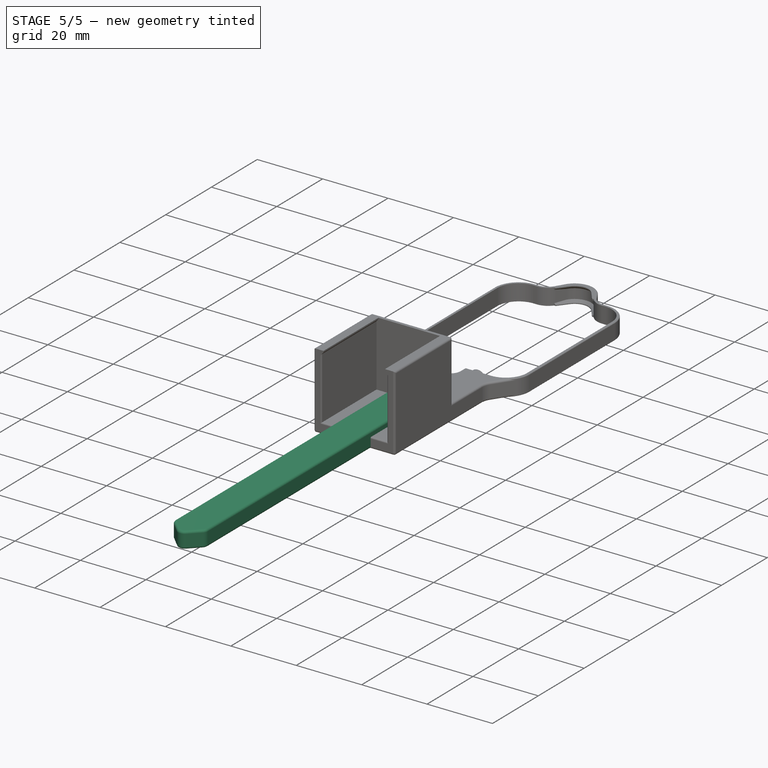
[diagram: stage 5 of 5 — iso view after this stage's code; geometry added in this stage tinted green]
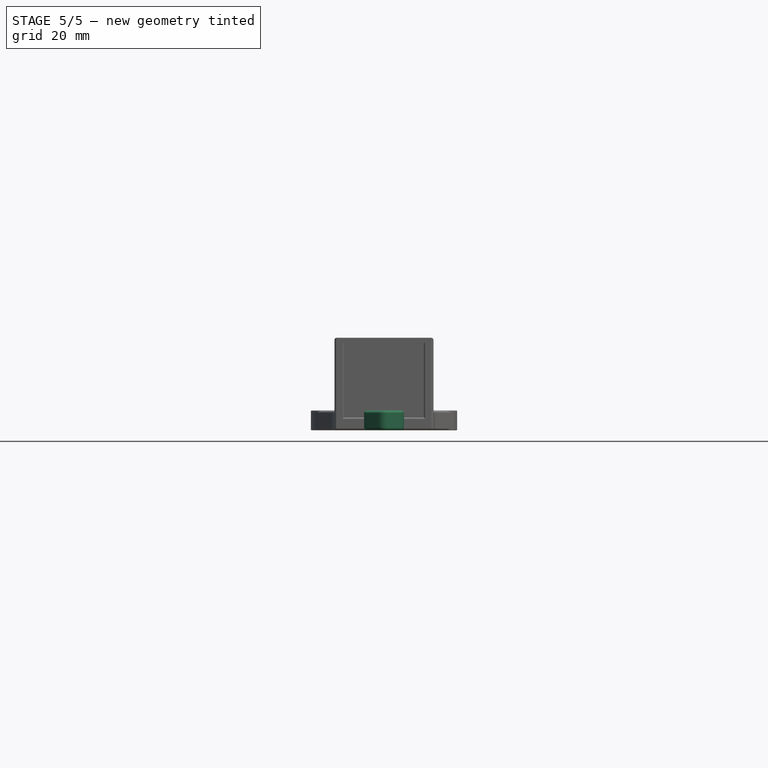
[diagram: stage 5 of 5 — front view after this stage's code; geometry added in this stage tinted green]
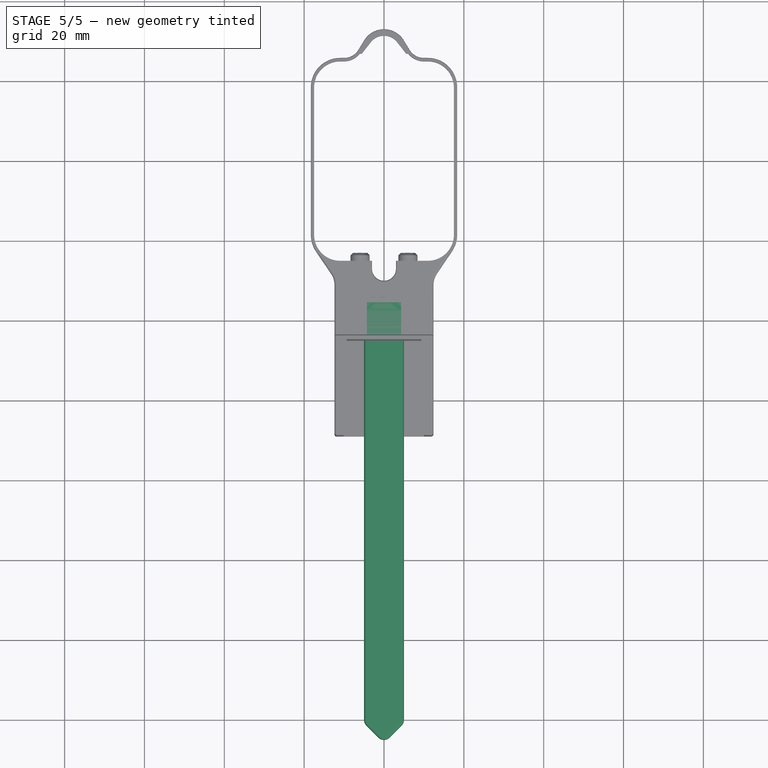
[diagram: stage 5 of 5 — top view after this stage's code; geometry added in this stage tinted green]
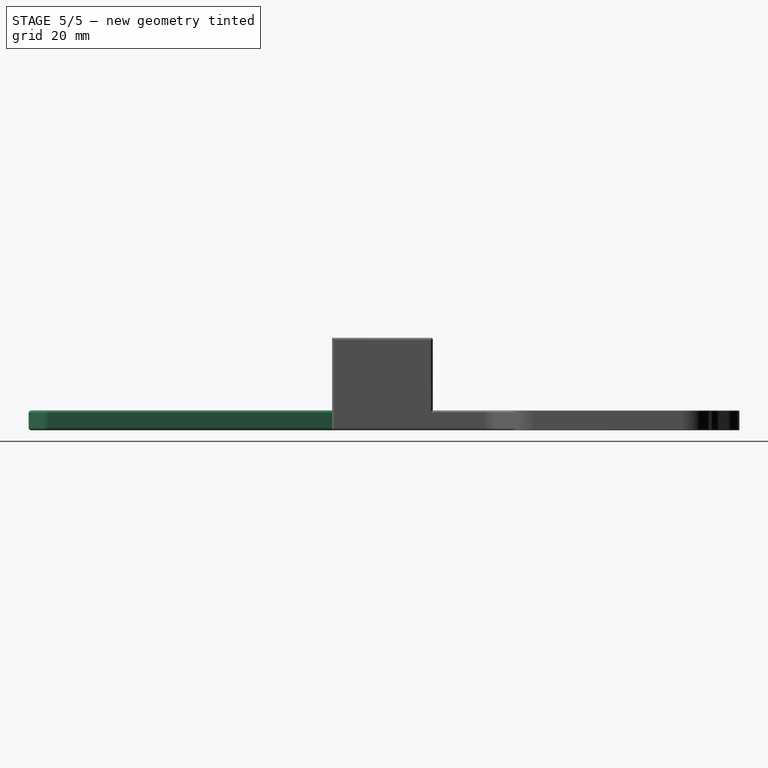
[diagram: stage 5 of 5 — right view after this stage's code; geometry added in this stage tinted green]
FEATURE [Sketcher::SketchObject] Sketch003  label="SketchStick2"
  sketch-geometry (24):
    g0: ArcOfCircle CenterX=11 CenterY=-18.5 CenterZ=0 NormalX=0 NormalY=0 NormalZ=1 AngleXU=0 Radius=6.5 StartAngle=4.71239 EndAngle=6.28319
    g1: ArcOfCircle CenterX=-11 CenterY=-18.5 CenterZ=0 NormalX=0 NormalY=0 NormalZ=1 AngleXU=0 Radius=6.5 StartAngle=3.14159 EndAngle=4.71239
    g2: ArcOfCircle CenterX=-11 CenterY=-18.5 CenterZ=0 NormalX=0 NormalY=0 NormalZ=1 AngleXU=0 Radius=7.31 StartAngle=3.14159 EndAngle=4.01426
    g3: ArcOfCircle CenterX=11 CenterY=-18.5 CenterZ=0 NormalX=0 NormalY=0 NormalZ=1 AngleXU=0 Radius=7.31 StartAngle=5.41052 EndAngle=6.28319
    g4: GeomPoint X=11 Y=25 Z=0
    g5: LineSegment StartX=17.5 StartY=-18.5 StartZ=0 EndX=18.31 EndY=-18.5 EndZ=0
    g6: LineSegment StartX=-18.31 StartY=-18.5 StartZ=0 EndX=-17.5 EndY=-18.5 EndZ=0
    g7: LineSegment StartX=-15.6988 StartY=-24.0998 StartZ=0 EndX=-6.78606 EndY=-31.5784 EndZ=0
    g8: LineSegment StartX=15.6988 StartY=-24.0998 StartZ=0 EndX=6.78606 EndY=-31.5784 EndZ=0
    g9: LineSegment StartX=-5 StartY=-35.4087 StartZ=0 EndX=-5 EndY=-140 EndZ=0
    g10: LineSegment StartX=5 StartY=-35.4087 StartZ=0 EndX=5 EndY=-140 EndZ=0
    g11: ArcOfCircle CenterX=-10 CenterY=-35.4087 CenterZ=0 NormalX=0 NormalY=0 NormalZ=1 AngleXU=0 Radius=5 StartAngle=0 EndAngle=0.872665
    g12: ArcOfCircle CenterX=10 CenterY=-35.4087 CenterZ=0 NormalX=0 NormalY=0 NormalZ=1 AngleXU=0 Radius=5 StartAngle=2.26893 EndAngle=3.14159
    g13: ArcOfCircle CenterX=-3 CenterY=-140 CenterZ=0 NormalX=0 NormalY=0 NormalZ=1 AngleXU=0 Radius=2 StartAngle=3.14159 EndAngle=3.92699
    g14: ArcOfCircle CenterX=3 CenterY=-140 CenterZ=0 NormalX=0 NormalY=0 NormalZ=1 AngleXU=0 Radius=2 StartAngle=5.49779 EndAngle=6.28319
    g15: LineSegment StartX=-4.41421 StartY=-141.414 StartZ=0 EndX=-1.41421 EndY=-144.414 EndZ=0
    g16: LineSegment StartX=4.41421 StartY=-141.414 StartZ=0 EndX=1.41421 EndY=-144.414 EndZ=0
    g17: ArcOfCircle CenterX=0 CenterY=-143 CenterZ=0 NormalX=0 NormalY=0 NormalZ=1 AngleXU=0 Radius=2 StartAngle=3.92699 EndAngle=4.71239
    g18: ArcOfCircle CenterX=0 CenterY=-143 CenterZ=0 NormalX=0 NormalY=0 NormalZ=1 AngleXU=0 Radius=2 StartAngle=4.71239 EndAngle=5.49779
    g19: LineSegment StartX=-11 StartY=-25 StartZ=0 EndX=-3 EndY=-25 EndZ=0
    g20: LineSegment StartX=11 StartY=-25 StartZ=0 EndX=3 EndY=-25 EndZ=0
    g21: LineSegment StartX=3 StartY=-25 StartZ=0 EndX=3 EndY=-27 EndZ=0
    g22: LineSegment StartX=-3 StartY=-25 StartZ=0 EndX=-3 EndY=-27 EndZ=0
    g23: ArcOfCircle CenterX=0 CenterY=-27 CenterZ=0 NormalX=0 NormalY=0 NormalZ=1 AngleXU=0 Radius=3 StartAngle=3.14159 EndAngle=6.28319
  constraints (68):
    c: Symmetric(g1,g0,g-2)
    c: Vertical(g0,g0)
    c: Horizontal(g0,g0)
    c: Vertical(g1,g1)
    c: Horizontal(g1,g1)
    c: Radius(g0) = 6.5
    c: DistanceX(g1,g0) = 35
    c: Horizontal(g1,g0)
    c: Coincident(g2,g1)
    c: Coincident(g3,g0)
    c: Horizontal(g0,g3)
    c: DistanceX(g0,g3) = 0.81
    c: Horizontal(g2,g1)
    c: Symmetric(g4,g0,g-1)
    c: DistanceY(g0,g4) = 50
    c: Coincident(g5,g0)
    c: Coincident(g5,g3)
    c: Coincident(g6,g2)
    c: Coincident(g6,g1)
    c: Vertical(g9)
    c: Vertical(g10)
    c: Tangent(g8,g3) = 1.5708
    c: Tangent(g7,g2) = -1.5708
    c: Coincident(g11,g9)
    c: Coincident(g12,g10)
    c: Horizontal(g9,g11)
    c: Horizontal(g10,g12)
    c: Tangent(g11,g7) = 1.5708
    c: Tangent(g12,g8) = -1.5708
    c: Symmetric(g9,g10,g-2)
    c: DistanceX(g9,g10) = 10
    c: Radius(g12) = 5
    c: Horizontal(g7,g8)
    c: Equal(g6,g5)
    c: Angle(g10,g8) = 2.26893
    c: Coincident(g13,g9)
    c: Coincident(g14,g10)
    c: Coincident(g18,g17)
    c: Coincident(g18,g17)
    c: Horizontal(g9,g13)
    c: Horizontal(g14,g10)
    c: Horizontal(g9,g10)
    c: Tangent(g16,g14) = 1.5708
    c: Tangent(g15,g13) = -1.5708
    c: PointOnObject(g17,g-2)
    c: PointOnObject(g17,g-2)
    c: Tangent(g18,g16) = 1.5708
    c: Tangent(g17,g15) = -1.5708
    c: Angle(g10,g16) = 2.35619
    c: Radius(g14) = 2
    c: Radius(g18) = 2
    c: Horizontal(g13,g14)
    c: DistanceY(g17,g0) = 120
    c: Coincident(g19,g1)
    c: Horizontal(g19)
    c: Coincident(g20,g0)
    c: Horizontal(g20)
    c: Coincident(g21,g20)
    c: Vertical(g21)
    c: Coincident(g22,g19)
    c: Vertical(g22)
    c: Coincident(g23,g22)
    c: Coincident(g23,g21)
    c: Horizontal(g22,g21)
    c: Horizontal(g21,g23)
    c: PointOnObject(g23,g-2)
    c: Radius(g23) = 3
    c: DistanceY(g21,g21) = 2
FEATURE [Part::Extrusion] Extrude004  label="ExtrudeStick2"
  Base = -> Sketch003
  Dir = (0,0,1)
  DirMode = 2
  FaceMakerClass = Part::FaceMakerBullseye
  LengthFwd = 5
  LengthRev = 0
  Solid = true
  Symmetric = false
FEATURE [Part::Fillet] Fillet  label="FilletStick2"
  Base = -> Extrude004
  Edges = 34 edges: [Edge9 r=0.7,Edge10 r=0.7,Edge12 r=0.7,Edge13 r=0.7,Edge15 r=0.7,Edge16 r=0.7,Edge18 r=0.7,Edge19 r=0.7,Edge21 r=0.7,Edge22 r=0.7,Edge24 r=0.7,Edge25 r=0.7,Edge27 r=0.7,Edge28 r=0.7,Edge30 r=0.7,Edge31 r=0.7,Edge33 r=0.7,Edge34 r=0.7,Edge36 r=0.7,Edge37 r=0.7,Edge39 r=0.7,Edge40 r=0.7,Edge42 r=0.7,Edge43 r=0.7,Edge45 r=0.7,Edge46 r=0.7,Edge48 r=0.7,Edge49 r=0.7,Edge60 r=0.4,Edge61 r=0.4,Edge63 r=0.47,Edge64 r=0.4,Edge66 r=0.4,Edge67 r=0.4]
FEATURE [Part::Cut] Cut  label="CutStick120mm2"
  Base = -> Fillet
  Tool = -> Fusion001
FEATURE [Part::MultiFuse] Fusion  label="FusionStick120mm"
  Shapes = -> [Fusion002,Cut]
FEATURE [Part::MultiFuse] Fusion004  label="FusionHalter20mm"
  Refine = true
  Shapes = -> [Cut001,Clone]
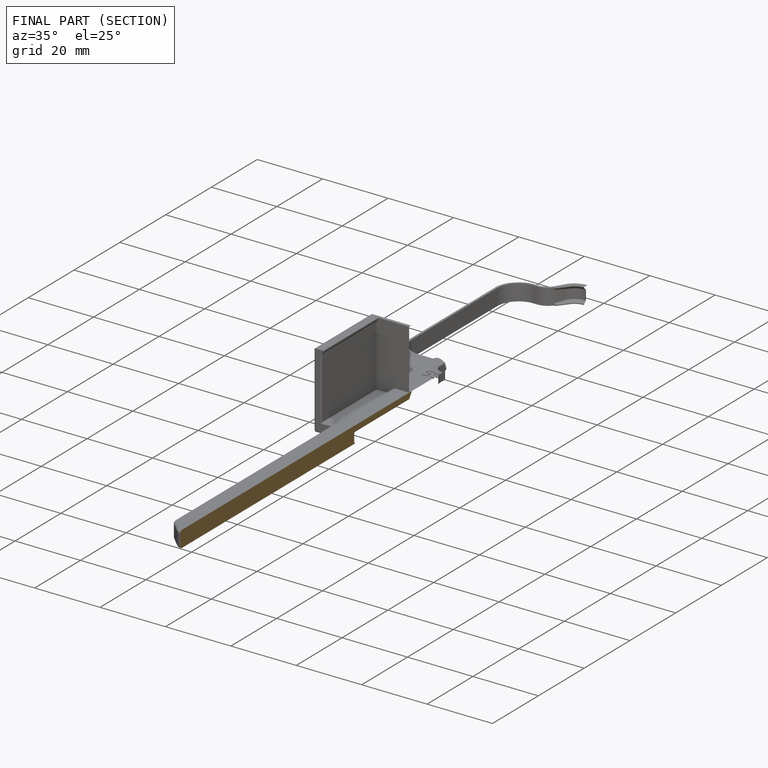
[diagram: finished part — half-section view (interior)]
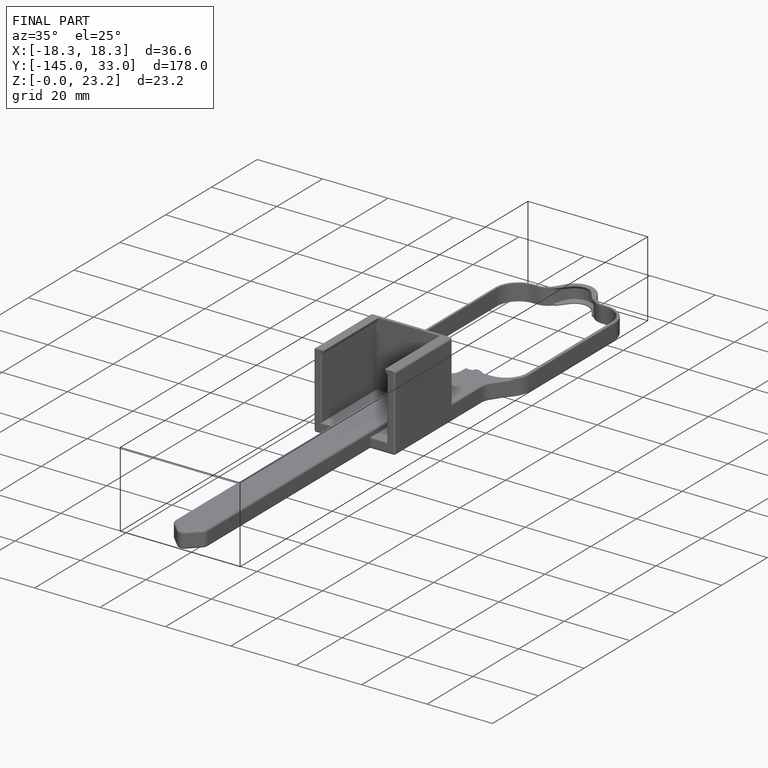
[diagram: finished part — iso view with bounding-box wireframe]
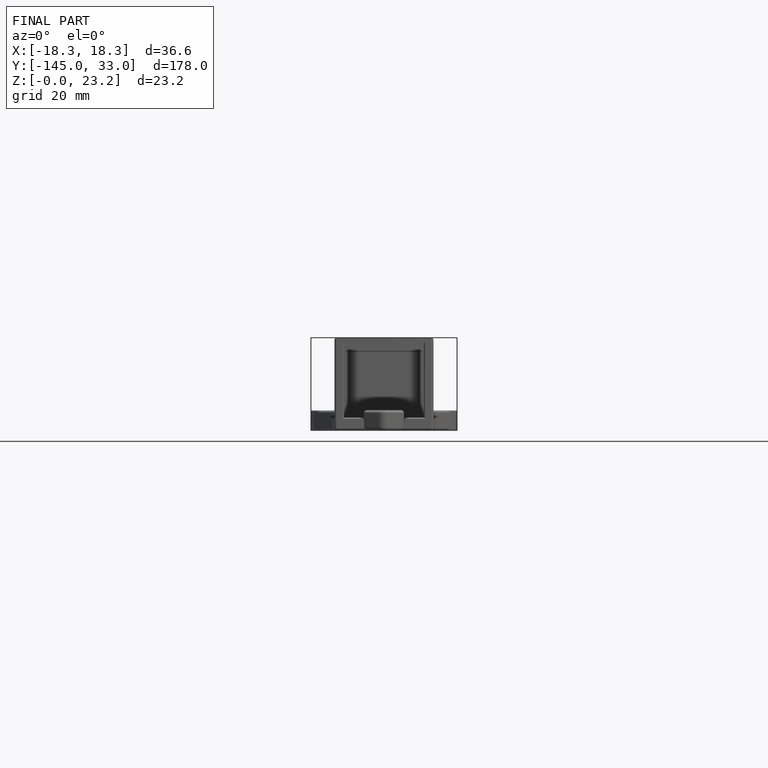
[diagram: finished part — front view with bounding-box wireframe]
